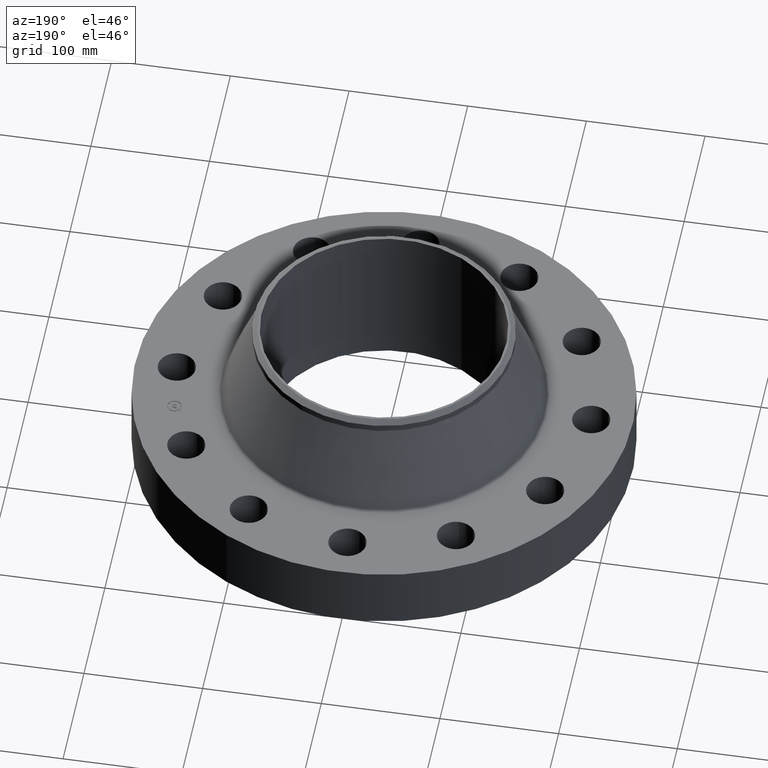
[diagram: clean part render]
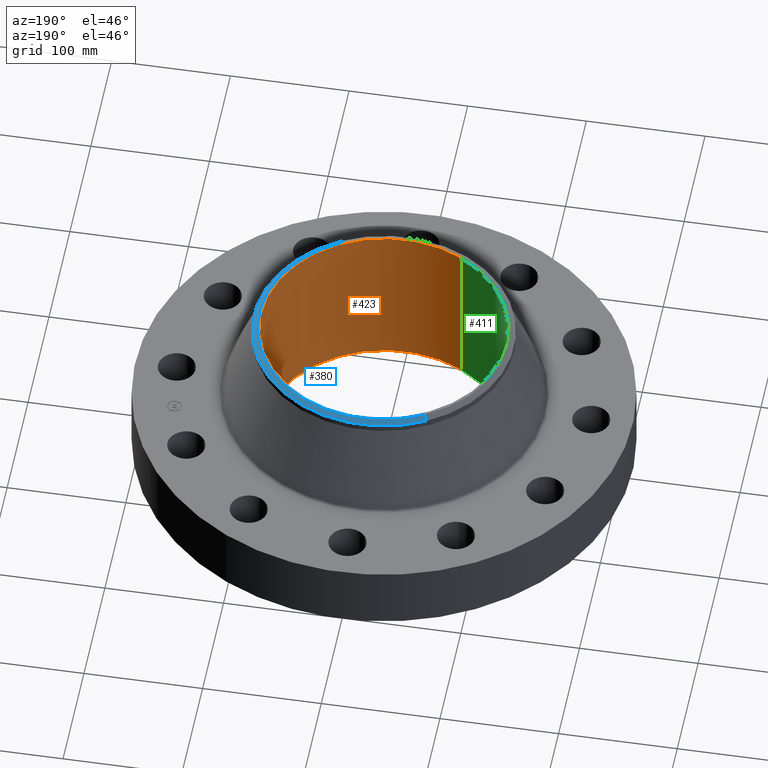
[diagram: same view with three faces highlighted in distinct colors, each labeled with its STEP entity id]
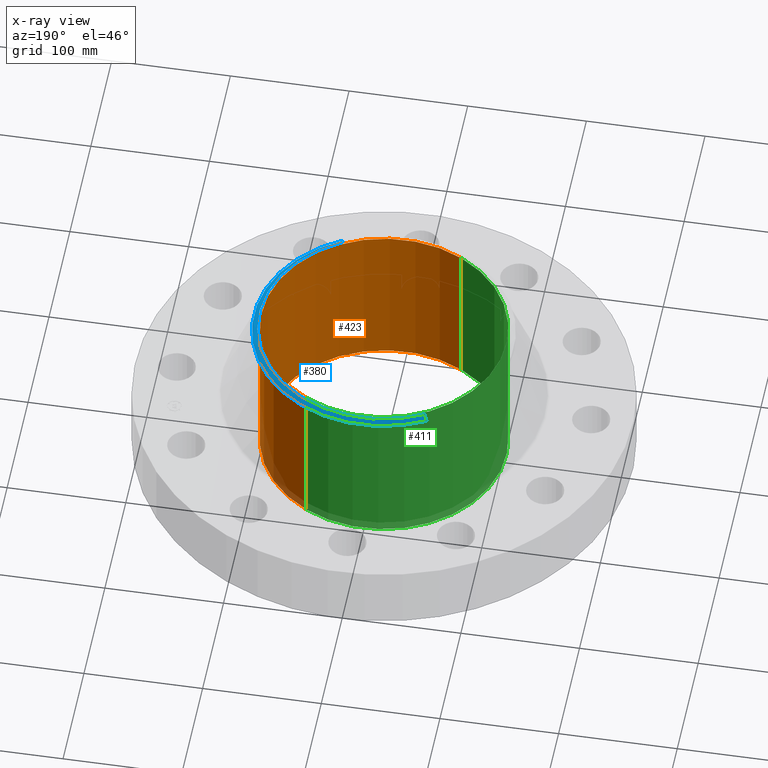
[diagram: x-ray of the same camera — body ghosted, the three highlighted faces saturated]
A machine part, auxiliary view with three faces highlighted in distinct colors.
The next image is the same camera in x-ray (body ghosted, the three faces saturated) — at least one of them is partly hidden behind the body in this view.
Their STEP definitions:

[orange] entity #423 — the highlighted cylindrical surface (partial cylindrical patch) has radius 103.188 mm, axis along (0, 0, -1).
#365=AXIS2_PLACEMENT_3D('Circle Axis2P3D',#363,#364,$) ;
#384=AXIS2_PLACEMENT_3D('Cylinder Axis2P3D',#381,#382,#383) ;
#414=AXIS2_PLACEMENT_3D('Circle Axis2P3D',#412,#413,$) ;
#358=CARTESIAN_POINT('Vertex',(-1.94766625059,-3.56517915769,5.25000000002)) ;
#360=CARTESIAN_POINT('Vertex',(1.94766625059,3.56517915769,5.25000000002)) ;
#363=CARTESIAN_POINT('Axis2P3D Location',(0.,0.,5.25000000002)) ;
#381=CARTESIAN_POINT('Axis2P3D Location',(0.,0.,2.62500000001)) ;
#386=CARTESIAN_POINT('Line Origine',(-1.94766625059,-3.56517915769,2.62500000001)) ;
#390=CARTESIAN_POINT('Vertex',(-1.94766625059,-3.56517915769,-1.34275792585E-014)) ;
#397=CARTESIAN_POINT('Vertex',(1.94766625059,3.56517915769,-1.34275792585E-014)) ;
#400=CARTESIAN_POINT('Line Origine',(1.94766625059,3.56517915769,2.62500000001)) ;
#412=CARTESIAN_POINT('Axis2P3D Location',(0.,0.,-1.34275792585E-014)) ;
#364=DIRECTION('Axis2P3D Direction',(0.,0.,-0.0393700787402)) ;
#382=DIRECTION('Axis2P3D Direction',(0.,0.,-0.0393700787402)) ;
#383=DIRECTION('Axis2P3D XDirection',(0.0188750212049,0.0345504945626,0.)) ;
#387=DIRECTION('Vector Direction',(0.,0.,-0.0393700787402)) ;
#401=DIRECTION('Vector Direction',(0.,0.,-0.0393700787402)) ;
#413=DIRECTION('Axis2P3D Direction',(0.,0.,-0.0393700787402)) ;
#388=VECTOR('Line Direction',#387,0.0393700787402) ;
#402=VECTOR('Line Direction',#401,0.0393700787402) ;
#418=ORIENTED_EDGE('',*,*,#367,.F.) ;
#419=ORIENTED_EDGE('',*,*,#404,.T.) ;
#420=ORIENTED_EDGE('',*,*,#416,.T.) ;
#421=ORIENTED_EDGE('',*,*,#392,.F.) ;
#423=ADVANCED_FACE('PartBody',(#422),#385,.F.) ;
#366=CIRCLE('generated circle',#365,4.06250000002) ;
#415=CIRCLE('generated circle',#414,4.06250000002) ;
#385=CYLINDRICAL_SURFACE('generated cylinder',#384,4.06250000002) ;
#367=EDGE_CURVE('',#361,#359,#366,.T.) ;
#392=EDGE_CURVE('',#359,#391,#389,.T.) ;
#404=EDGE_CURVE('',#361,#398,#403,.T.) ;
#416=EDGE_CURVE('',#398,#391,#415,.T.) ;
#417=EDGE_LOOP('',(#418,#419,#420,#421)) ;
#422=FACE_OUTER_BOUND('',#417,.T.) ;
#389=LINE('Line',#386,#388) ;
#403=LINE('Line',#400,#402) ;
#359=VERTEX_POINT('',#358) ;
#361=VERTEX_POINT('',#360) ;
#391=VERTEX_POINT('',#390) ;
#398=VERTEX_POINT('',#397) ;

[blue] entity #380 — the highlighted conical surface has half-angle 52.5 deg.
#270=AXIS2_PLACEMENT_3D('Circle Axis2P3D',#268,#269,$) ;
#297=AXIS2_PLACEMENT_3D('Circle Axis2P3D',#295,#296,$) ;
#311=AXIS2_PLACEMENT_3D('Cone Axis2P3D',#308,#309,#310) ;
#347=AXIS2_PLACEMENT_3D('Circle Axis2P3D',#345,#346,$) ;
#265=CARTESIAN_POINT('Vertex',(2.06872119909,3.78676875457,5.11666938343)) ;
#268=CARTESIAN_POINT('Axis2P3D Location',(0.,0.,5.11666938343)) ;
#272=CARTESIAN_POINT('Vertex',(2.06872119909,-3.78676875457,5.11666938343)) ;
#292=CARTESIAN_POINT('Vertex',(-2.06872119909,3.78676875457,5.11666938343)) ;
#295=CARTESIAN_POINT('Axis2P3D Location',(0.,0.,5.11666938343)) ;
#308=CARTESIAN_POINT('Axis2P3D Location',(0.,0.,5.25000000002)) ;
#313=CARTESIAN_POINT('Line Origine',(2.02706874604,-3.7105244507,5.18333469172)) ;
#317=CARTESIAN_POINT('Vertex',(1.985416293,-3.63428014682,5.25000000002)) ;
#324=CARTESIAN_POINT('Vertex',(-1.985416293,3.63428014682,5.25000000002)) ;
#327=CARTESIAN_POINT('Line Origine',(-2.02706874604,3.7105244507,5.18333469172)) ;
#345=CARTESIAN_POINT('Axis2P3D Location',(0.,0.,5.25000000002)) ;
#269=DIRECTION('Axis2P3D Direction',(0.,0.,-0.0393700787402)) ;
#296=DIRECTION('Axis2P3D Direction',(0.,0.,-0.0393700787402)) ;
#309=DIRECTION('Axis2P3D Direction',(-0.,-0.,-0.0393700787402)) ;
#310=DIRECTION('Axis2P3D XDirection',(-0.0188750212049,0.0345504945626,0.)) ;
#314=DIRECTION('Vector Direction',(0.014974561121,-0.02741075027,-0.023966985394)) ;
#328=DIRECTION('Vector Direction',(-0.014974561121,0.02741075027,-0.023966985394)) ;
#346=DIRECTION('Axis2P3D Direction',(0.,0.,-0.0393700787402)) ;
#315=VECTOR('Line Direction',#314,0.0393700787402) ;
#329=VECTOR('Line Direction',#328,0.0393700787402) ;
#374=ORIENTED_EDGE('',*,*,#331,.F.) ;
#375=ORIENTED_EDGE('',*,*,#349,.F.) ;
#376=ORIENTED_EDGE('',*,*,#319,.T.) ;
#377=ORIENTED_EDGE('',*,*,#274,.T.) ;
#378=ORIENTED_EDGE('',*,*,#299,.F.) ;
#380=ADVANCED_FACE('PartBody',(#379),#312,.T.) ;
#271=CIRCLE('generated circle',#270,4.31500000002) ;
#298=CIRCLE('generated circle',#297,4.31500000002) ;
#348=CIRCLE('generated circle',#347,4.1412401575) ;
#312=CONICAL_SURFACE('Cone',#311,4.1412401575,0.916297857297) ;
#274=EDGE_CURVE('',#273,#266,#271,.F.) ;
#299=EDGE_CURVE('',#293,#266,#298,.T.) ;
#319=EDGE_CURVE('',#318,#273,#316,.T.) ;
#331=EDGE_CURVE('',#325,#293,#330,.T.) ;
#349=EDGE_CURVE('',#318,#325,#348,.F.) ;
#373=EDGE_LOOP('',(#374,#375,#376,#377,#378)) ;
#379=FACE_OUTER_BOUND('',#373,.T.) ;
#316=LINE('Line',#313,#315) ;
#330=LINE('Line',#327,#329) ;
#266=VERTEX_POINT('',#265) ;
#273=VERTEX_POINT('',#272) ;
#293=VERTEX_POINT('',#292) ;
#318=VERTEX_POINT('',#317) ;
#325=VERTEX_POINT('',#324) ;

[green] entity #411 — the highlighted cylindrical surface (partial cylindrical patch) has radius 103.188 mm, axis along (0, 0, -1).
#356=AXIS2_PLACEMENT_3D('Circle Axis2P3D',#354,#355,$) ;
#384=AXIS2_PLACEMENT_3D('Cylinder Axis2P3D',#381,#382,#383) ;
#395=AXIS2_PLACEMENT_3D('Circle Axis2P3D',#393,#394,$) ;
#354=CARTESIAN_POINT('Axis2P3D Location',(0.,0.,5.25000000002)) ;
#358=CARTESIAN_POINT('Vertex',(-1.94766625059,-3.56517915769,5.25000000002)) ;
#360=CARTESIAN_POINT('Vertex',(1.94766625059,3.56517915769,5.25000000002)) ;
#381=CARTESIAN_POINT('Axis2P3D Location',(0.,0.,2.62500000001)) ;
#386=CARTESIAN_POINT('Line Origine',(-1.94766625059,-3.56517915769,2.62500000001)) ;
#390=CARTESIAN_POINT('Vertex',(-1.94766625059,-3.56517915769,-1.34275792585E-014)) ;
#393=CARTESIAN_POINT('Axis2P3D Location',(0.,0.,-1.34275792585E-014)) ;
#397=CARTESIAN_POINT('Vertex',(1.94766625059,3.56517915769,-1.34275792585E-014)) ;
#400=CARTESIAN_POINT('Line Origine',(1.94766625059,3.56517915769,2.62500000001)) ;
#355=DIRECTION('Axis2P3D Direction',(0.,0.,-0.0393700787402)) ;
#382=DIRECTION('Axis2P3D Direction',(0.,0.,-0.0393700787402)) ;
#383=DIRECTION('Axis2P3D XDirection',(0.0188750212049,0.0345504945626,0.)) ;
#387=DIRECTION('Vector Direction',(0.,0.,-0.0393700787402)) ;
#394=DIRECTION('Axis2P3D Direction',(0.,0.,-0.0393700787402)) ;
#401=DIRECTION('Vector Direction',(0.,0.,-0.0393700787402)) ;
#388=VECTOR('Line Direction',#387,0.0393700787402) ;
#402=VECTOR('Line Direction',#401,0.0393700787402) ;
#406=ORIENTED_EDGE('',*,*,#362,.F.) ;
#407=ORIENTED_EDGE('',*,*,#392,.T.) ;
#408=ORIENTED_EDGE('',*,*,#399,.T.) ;
#409=ORIENTED_EDGE('',*,*,#404,.F.) ;
#411=ADVANCED_FACE('PartBody',(#410),#385,.F.) ;
#357=CIRCLE('generated circle',#356,4.06250000002) ;
#396=CIRCLE('generated circle',#395,4.06250000002) ;
#385=CYLINDRICAL_SURFACE('generated cylinder',#384,4.06250000002) ;
#362=EDGE_CURVE('',#359,#361,#357,.T.) ;
#392=EDGE_CURVE('',#359,#391,#389,.T.) ;
#399=EDGE_CURVE('',#391,#398,#396,.T.) ;
#404=EDGE_CURVE('',#361,#398,#403,.T.) ;
#405=EDGE_LOOP('',(#406,#407,#408,#409)) ;
#410=FACE_OUTER_BOUND('',#405,.T.) ;
#389=LINE('Line',#386,#388) ;
#403=LINE('Line',#400,#402) ;
#359=VERTEX_POINT('',#358) ;
#361=VERTEX_POINT('',#360) ;
#391=VERTEX_POINT('',#390) ;
#398=VERTEX_POINT('',#397) ;